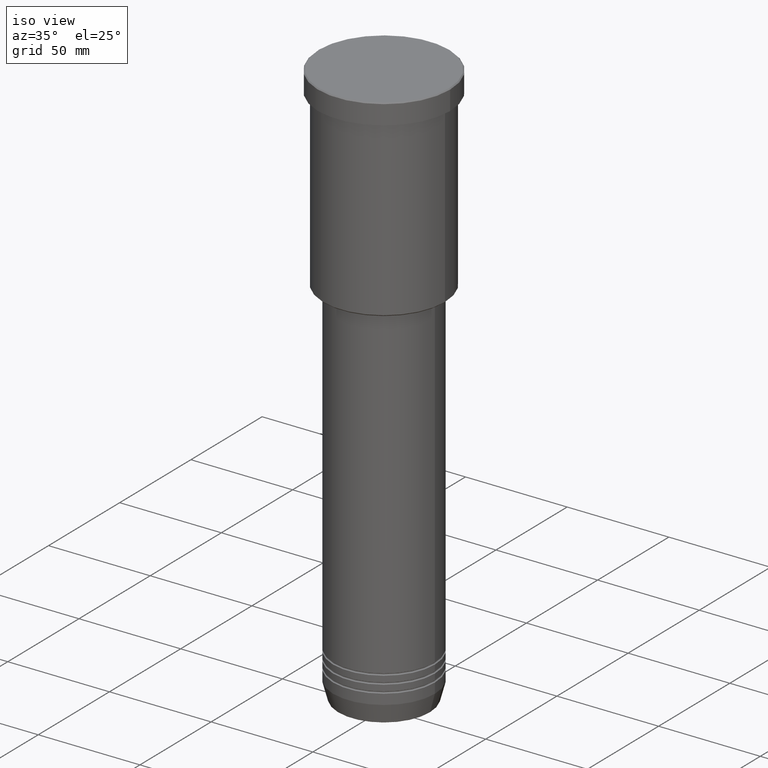
[diagram: clean part render]
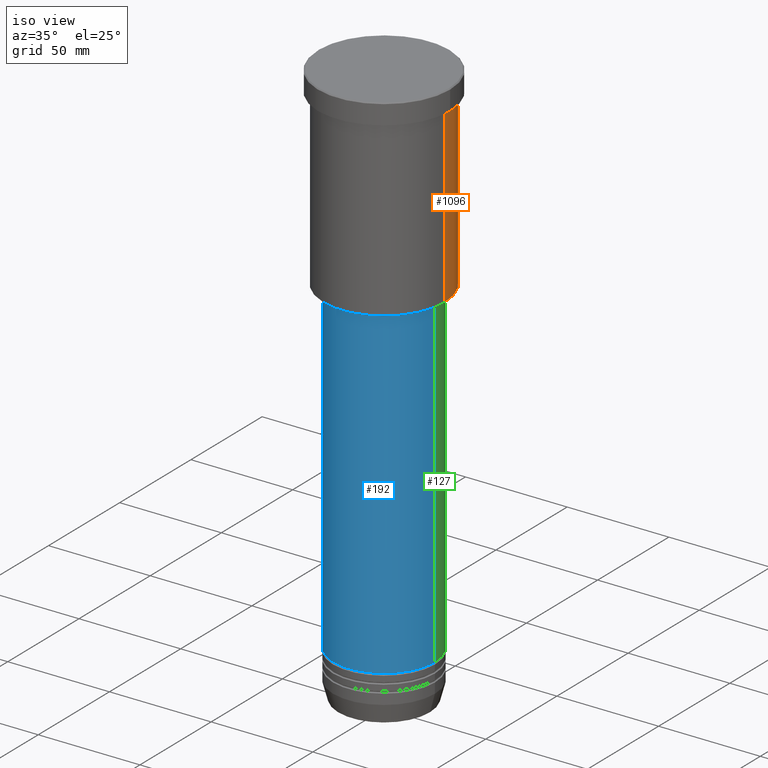
[diagram: same view with three faces highlighted in distinct colors, each labeled with its STEP entity id]
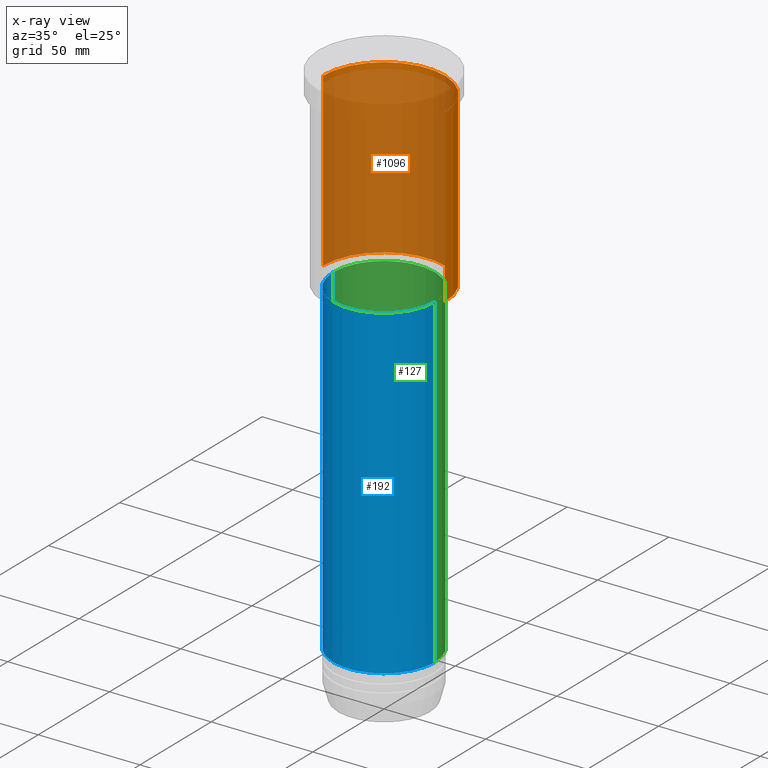
[diagram: x-ray of the same camera — body ghosted, the three highlighted faces saturated]
A machine part, iso view with three faces highlighted in distinct colors.
The next image is the same camera in x-ray (body ghosted, the three faces saturated) — at least one of them is partly hidden behind the body in this view.
Their STEP definitions:

[orange] entity #1096 — the highlighted cylindrical surface (partial cylindrical patch) has radius 30 mm, axis along (-0, -0, 1).
#24 = CARTESIAN_POINT ( 'NONE',  ( 30.00000000000000000, 0.000000000000000000, 0.000000000000000000 ) ) ;
#33 = EDGE_CURVE ( 'NONE', #945, #1038, #848, .T. ) ;
#143 = DIRECTION ( 'NONE',  ( -0.000000000000000000, -0.000000000000000000, 1.000000000000000000 ) ) ;
#183 = LINE ( 'NONE', #292, #623 ) ;
#216 = VECTOR ( 'NONE', #382, 1000.000000000000000 ) ;
#220 = VERTEX_POINT ( 'NONE', #631 ) ;
#232 = CARTESIAN_POINT ( 'NONE',  ( 30.00000000000000000, 0.000000000000000000, -10.99999999999999289 ) ) ;
#238 = CIRCLE ( 'NONE', #583, 30.00000000000000000 ) ;
#292 = CARTESIAN_POINT ( 'NONE',  ( -30.00000000000000000, 3.673940397442059178E-15, 0.000000000000000000 ) ) ;
#295 = EDGE_CURVE ( 'NONE', #945, #713, #990, .T. ) ;
#324 = EDGE_CURVE ( 'NONE', #1038, #220, #238, .T. ) ;
#332 = CARTESIAN_POINT ( 'NONE',  ( 0.000000000000000000, 0.000000000000000000, -95.50000000000000000 ) ) ;
#348 = ORIENTED_EDGE ( 'NONE', *, *, #33, .F. ) ;
#382 = DIRECTION ( 'NONE',  ( -0.000000000000000000, -0.000000000000000000, 1.000000000000000000 ) ) ;
#438 = EDGE_LOOP ( 'NONE', ( #938, #1055, #1130, #348 ) ) ;
#457 = EDGE_CURVE ( 'NONE', #713, #220, #183, .T. ) ;
#463 = AXIS2_PLACEMENT_3D ( 'NONE', #332, #1164, #1054 ) ;
#469 = DIRECTION ( 'NONE',  ( -0.000000000000000000, -0.000000000000000000, 1.000000000000000000 ) ) ;
#553 = CARTESIAN_POINT ( 'NONE',  ( 30.00000000000000000, 0.000000000000000000, -95.50000000000000000 ) ) ;
#583 = AXIS2_PLACEMENT_3D ( 'NONE', #1153, #143, #957 ) ;
#623 = VECTOR ( 'NONE', #469, 1000.000000000000000 ) ;
#631 = CARTESIAN_POINT ( 'NONE',  ( -30.00000000000000000, 3.673940397442059178E-15, -10.99999999999999289 ) ) ;
#710 = FACE_OUTER_BOUND ( 'NONE', #438, .T. ) ;
#713 = VERTEX_POINT ( 'NONE', #1178 ) ;
#797 = CYLINDRICAL_SURFACE ( 'NONE', #949, 30.00000000000000000 ) ;
#848 = LINE ( 'NONE', #24, #216 ) ;
#877 = DIRECTION ( 'NONE',  ( 1.000000000000000000, 0.000000000000000000, 0.000000000000000000 ) ) ;
#938 = ORIENTED_EDGE ( 'NONE', *, *, #295, .T. ) ;
#945 = VERTEX_POINT ( 'NONE', #553 ) ;
#949 = AXIS2_PLACEMENT_3D ( 'NONE', #1053, #1159, #877 ) ;
#957 = DIRECTION ( 'NONE',  ( 1.000000000000000000, 0.000000000000000000, 0.000000000000000000 ) ) ;
#990 = CIRCLE ( 'NONE', #463, 30.00000000000000000 ) ;
#1038 = VERTEX_POINT ( 'NONE', #232 ) ;
#1053 = CARTESIAN_POINT ( 'NONE',  ( 0.000000000000000000, 0.000000000000000000, 0.000000000000000000 ) ) ;
#1054 = DIRECTION ( 'NONE',  ( -1.000000000000000000, 0.000000000000000000, 0.000000000000000000 ) ) ;
#1055 = ORIENTED_EDGE ( 'NONE', *, *, #457, .T. ) ;
#1096 = ADVANCED_FACE ( 'NONE', ( #710 ), #797, .T. ) ;
#1130 = ORIENTED_EDGE ( 'NONE', *, *, #324, .F. ) ;
#1153 = CARTESIAN_POINT ( 'NONE',  ( 0.000000000000000000, 0.000000000000000000, -10.99999999999999289 ) ) ;
#1159 = DIRECTION ( 'NONE',  ( -0.000000000000000000, -0.000000000000000000, 1.000000000000000000 ) ) ;
#1164 = DIRECTION ( 'NONE',  ( -0.000000000000000000, -0.000000000000000000, 1.000000000000000000 ) ) ;
#1178 = CARTESIAN_POINT ( 'NONE',  ( -30.00000000000000000, 3.673940397442059178E-15, -95.50000000000000000 ) ) ;

[blue] entity #192 — the highlighted cylindrical surface (partial cylindrical patch) has radius 25 mm, axis along (-0, -0, 1).
#58 = CARTESIAN_POINT ( 'NONE',  ( 0.000000000000000000, 0.000000000000000000, -97.00000000000002842 ) ) ;
#61 = VERTEX_POINT ( 'NONE', #1119 ) ;
#97 = DIRECTION ( 'NONE',  ( 1.000000000000000000, 0.000000000000000000, 0.000000000000000000 ) ) ;
#114 = CARTESIAN_POINT ( 'NONE',  ( 25.00000000000000355, 0.000000000000000000, 0.000000000000000000 ) ) ;
#138 = CARTESIAN_POINT ( 'NONE',  ( -25.00000000000000000, 3.061616997868383437E-15, -257.0000000000000000 ) ) ;
#165 = FACE_OUTER_BOUND ( 'NONE', #788, .T. ) ;
#175 = CIRCLE ( 'NONE', #640, 25.00000000000000000 ) ;
#192 = ADVANCED_FACE ( 'NONE', ( #165 ), #526, .T. ) ;
#262 = DIRECTION ( 'NONE',  ( 1.000000000000000000, 0.000000000000000000, 0.000000000000000000 ) ) ;
#274 = AXIS2_PLACEMENT_3D ( 'NONE', #58, #1148, #328 ) ;
#328 = DIRECTION ( 'NONE',  ( 1.000000000000000000, 0.000000000000000000, 0.000000000000000000 ) ) ;
#377 = DIRECTION ( 'NONE',  ( -0.000000000000000000, -0.000000000000000000, 1.000000000000000000 ) ) ;
#389 = VECTOR ( 'NONE', #377, 1000.000000000000000 ) ;
#446 = AXIS2_PLACEMENT_3D ( 'NONE', #736, #1088, #262 ) ;
#479 = EDGE_CURVE ( 'NONE', #590, #61, #763, .T. ) ;
#489 = ORIENTED_EDGE ( 'NONE', *, *, #814, .T. ) ;
#526 = CYLINDRICAL_SURFACE ( 'NONE', #446, 25.00000000000000355 ) ;
#575 = VECTOR ( 'NONE', #1013, 1000.000000000000000 ) ;
#590 = VERTEX_POINT ( 'NONE', #138 ) ;
#640 = AXIS2_PLACEMENT_3D ( 'NONE', #850, #743, #97 ) ;
#736 = CARTESIAN_POINT ( 'NONE',  ( 0.000000000000000000, 0.000000000000000000, 0.000000000000000000 ) ) ;
#743 = DIRECTION ( 'NONE',  ( -0.000000000000000000, -0.000000000000000000, 1.000000000000000000 ) ) ;
#745 = CARTESIAN_POINT ( 'NONE',  ( 25.00000000000000000, 0.000000000000000000, -257.0000000000000000 ) ) ;
#748 = LINE ( 'NONE', #114, #389 ) ;
#763 = LINE ( 'NONE', #1106, #575 ) ;
#788 = EDGE_LOOP ( 'NONE', ( #1036, #489, #1073, #881 ) ) ;
#814 = EDGE_CURVE ( 'NONE', #590, #1123, #175, .T. ) ;
#820 = EDGE_CURVE ( 'NONE', #1123, #883, #748, .T. ) ;
#850 = CARTESIAN_POINT ( 'NONE',  ( 0.000000000000000000, 0.000000000000000000, -257.0000000000000000 ) ) ;
#881 = ORIENTED_EDGE ( 'NONE', *, *, #1090, .F. ) ;
#883 = VERTEX_POINT ( 'NONE', #1183 ) ;
#1013 = DIRECTION ( 'NONE',  ( -0.000000000000000000, -0.000000000000000000, 1.000000000000000000 ) ) ;
#1036 = ORIENTED_EDGE ( 'NONE', *, *, #479, .F. ) ;
#1066 = CIRCLE ( 'NONE', #274, 25.00000000000000711 ) ;
#1073 = ORIENTED_EDGE ( 'NONE', *, *, #820, .T. ) ;
#1088 = DIRECTION ( 'NONE',  ( -0.000000000000000000, -0.000000000000000000, 1.000000000000000000 ) ) ;
#1090 = EDGE_CURVE ( 'NONE', #61, #883, #1066, .T. ) ;
#1106 = CARTESIAN_POINT ( 'NONE',  ( -25.00000000000000355, 3.061616997868383437E-15, 0.000000000000000000 ) ) ;
#1119 = CARTESIAN_POINT ( 'NONE',  ( -25.00000000000001066, 3.061616997868384226E-15, -97.00000000000002842 ) ) ;
#1123 = VERTEX_POINT ( 'NONE', #745 ) ;
#1148 = DIRECTION ( 'NONE',  ( -0.000000000000000000, -0.000000000000000000, 1.000000000000000000 ) ) ;
#1183 = CARTESIAN_POINT ( 'NONE',  ( 25.00000000000000711, 0.000000000000000000, -97.00000000000002842 ) ) ;

[green] entity #127 — the highlighted cylindrical surface (partial cylindrical patch) has radius 25 mm, axis along (-0, -0, 1).
#61 = VERTEX_POINT ( 'NONE', #1119 ) ;
#67 = CIRCLE ( 'NONE', #857, 25.00000000000000000 ) ;
#114 = CARTESIAN_POINT ( 'NONE',  ( 25.00000000000000355, 0.000000000000000000, 0.000000000000000000 ) ) ;
#127 = ADVANCED_FACE ( 'NONE', ( #496 ), #371, .T. ) ;
#138 = CARTESIAN_POINT ( 'NONE',  ( -25.00000000000000000, 3.061616997868383437E-15, -257.0000000000000000 ) ) ;
#149 = EDGE_CURVE ( 'NONE', #1123, #590, #67, .T. ) ;
#157 = ORIENTED_EDGE ( 'NONE', *, *, #808, .F. ) ;
#197 = AXIS2_PLACEMENT_3D ( 'NONE', #333, #513, #364 ) ;
#268 = DIRECTION ( 'NONE',  ( 1.000000000000000000, 0.000000000000000000, 0.000000000000000000 ) ) ;
#333 = CARTESIAN_POINT ( 'NONE',  ( 0.000000000000000000, 0.000000000000000000, -97.00000000000002842 ) ) ;
#359 = DIRECTION ( 'NONE',  ( -0.000000000000000000, -0.000000000000000000, 1.000000000000000000 ) ) ;
#364 = DIRECTION ( 'NONE',  ( 1.000000000000000000, 0.000000000000000000, 0.000000000000000000 ) ) ;
#371 = CYLINDRICAL_SURFACE ( 'NONE', #1067, 25.00000000000000355 ) ;
#377 = DIRECTION ( 'NONE',  ( -0.000000000000000000, -0.000000000000000000, 1.000000000000000000 ) ) ;
#389 = VECTOR ( 'NONE', #377, 1000.000000000000000 ) ;
#479 = EDGE_CURVE ( 'NONE', #590, #61, #763, .T. ) ;
#496 = FACE_OUTER_BOUND ( 'NONE', #768, .T. ) ;
#513 = DIRECTION ( 'NONE',  ( -0.000000000000000000, -0.000000000000000000, 1.000000000000000000 ) ) ;
#575 = VECTOR ( 'NONE', #1013, 1000.000000000000000 ) ;
#590 = VERTEX_POINT ( 'NONE', #138 ) ;
#637 = CARTESIAN_POINT ( 'NONE',  ( 0.000000000000000000, 0.000000000000000000, 0.000000000000000000 ) ) ;
#653 = ORIENTED_EDGE ( 'NONE', *, *, #820, .F. ) ;
#740 = DIRECTION ( 'NONE',  ( -0.000000000000000000, -0.000000000000000000, 1.000000000000000000 ) ) ;
#745 = CARTESIAN_POINT ( 'NONE',  ( 25.00000000000000000, 0.000000000000000000, -257.0000000000000000 ) ) ;
#748 = LINE ( 'NONE', #114, #389 ) ;
#763 = LINE ( 'NONE', #1106, #575 ) ;
#768 = EDGE_LOOP ( 'NONE', ( #796, #825, #157, #653 ) ) ;
#796 = ORIENTED_EDGE ( 'NONE', *, *, #149, .T. ) ;
#808 = EDGE_CURVE ( 'NONE', #883, #61, #1080, .T. ) ;
#820 = EDGE_CURVE ( 'NONE', #1123, #883, #748, .T. ) ;
#825 = ORIENTED_EDGE ( 'NONE', *, *, #479, .T. ) ;
#857 = AXIS2_PLACEMENT_3D ( 'NONE', #1177, #359, #1091 ) ;
#883 = VERTEX_POINT ( 'NONE', #1183 ) ;
#1013 = DIRECTION ( 'NONE',  ( -0.000000000000000000, -0.000000000000000000, 1.000000000000000000 ) ) ;
#1067 = AXIS2_PLACEMENT_3D ( 'NONE', #637, #740, #268 ) ;
#1080 = CIRCLE ( 'NONE', #197, 25.00000000000000711 ) ;
#1091 = DIRECTION ( 'NONE',  ( 1.000000000000000000, 0.000000000000000000, 0.000000000000000000 ) ) ;
#1106 = CARTESIAN_POINT ( 'NONE',  ( -25.00000000000000355, 3.061616997868383437E-15, 0.000000000000000000 ) ) ;
#1119 = CARTESIAN_POINT ( 'NONE',  ( -25.00000000000001066, 3.061616997868384226E-15, -97.00000000000002842 ) ) ;
#1123 = VERTEX_POINT ( 'NONE', #745 ) ;
#1177 = CARTESIAN_POINT ( 'NONE',  ( 0.000000000000000000, 0.000000000000000000, -257.0000000000000000 ) ) ;
#1183 = CARTESIAN_POINT ( 'NONE',  ( 25.00000000000000711, 0.000000000000000000, -97.00000000000002842 ) ) ;